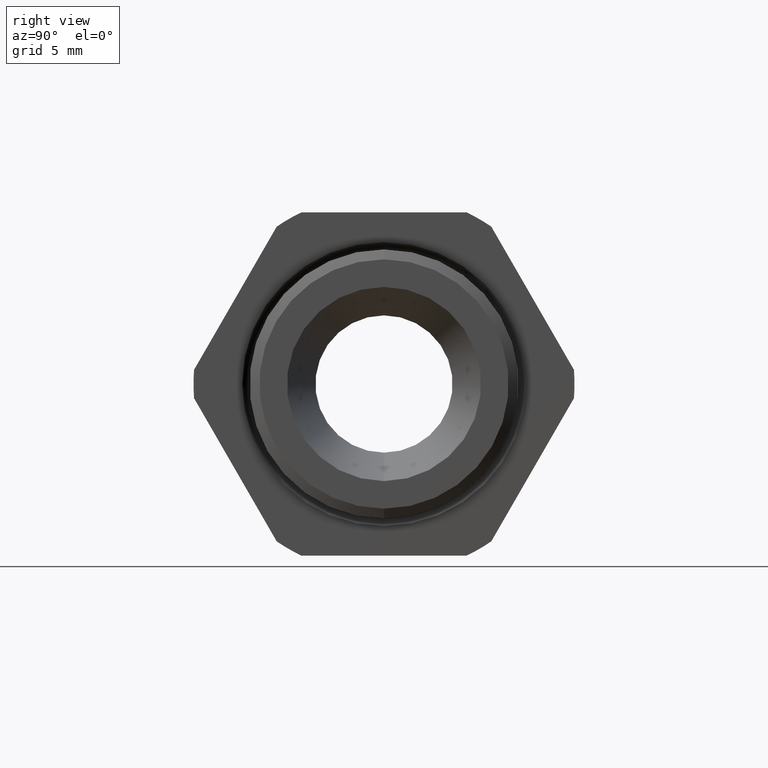
[diagram: clean part render]
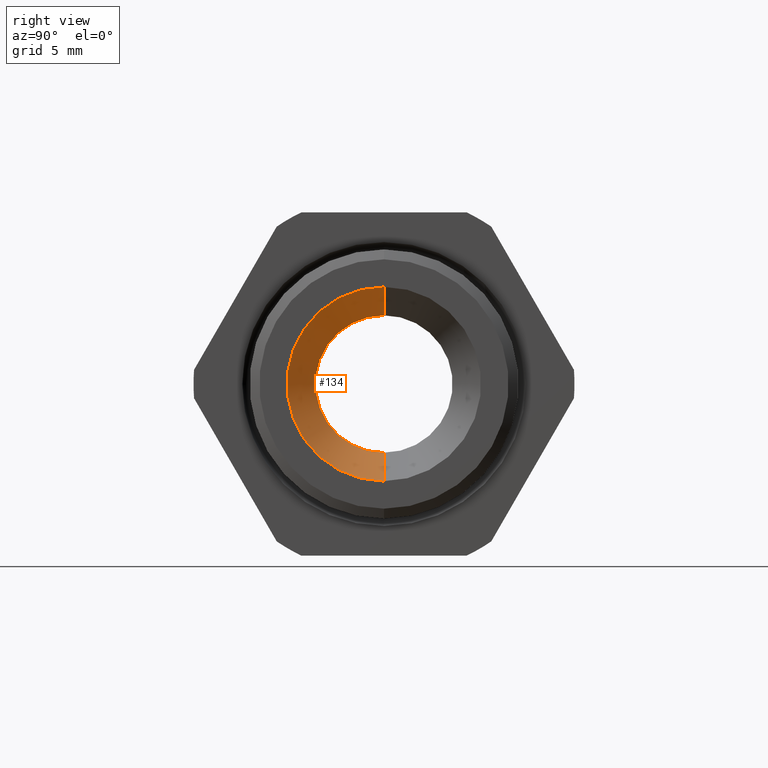
[diagram: same view with one face highlighted and labeled with its STEP entity id]
A machine part, right view. The second image highlights one B-rep face of the part: STEP entity #134.
In plain terms, the highlighted conical surface has half-angle 7 deg.
Its self-contained STEP definition (entity closure, byte-faithful):
#120 = EDGE_CURVE ( 'NONE', #128, #126, #1380, .T. ) ;
#121 = EDGE_CURVE ( 'NONE', #129, #122, #1376, .T. ) ;
#122 = VERTEX_POINT ( 'NONE', #1372 ) ;
#123 = EDGE_CURVE ( 'NONE', #122, #126, #1371, .T. ) ;
#124 = ORIENTED_EDGE ( 'NONE', *, *, #120, .F. ) ;
#125 = ORIENTED_EDGE ( 'NONE', *, *, #123, .T. ) ;
#126 = VERTEX_POINT ( 'NONE', #1366 ) ;
#128 = VERTEX_POINT ( 'NONE', #1359 ) ;
#129 = VERTEX_POINT ( 'NONE', #1358 ) ;
#130 = ORIENTED_EDGE ( 'NONE', *, *, #121, .T. ) ;
#131 = EDGE_CURVE ( 'NONE', #129, #128, #1356, .T. ) ;
#132 = EDGE_LOOP ( 'NONE', ( #133, #130, #125, #124 ) ) ;
#133 = ORIENTED_EDGE ( 'NONE', *, *, #131, .F. ) ;
#134 = ADVANCED_FACE ( 'NONE', ( #1357 ), #1349, .F. ) ;
#1349 = CONICAL_SURFACE ( 'NONE', #1412, 0.1499999999999999900, 0.1221730476395964700 ) ;
#1351 = CARTESIAN_POINT ( 'NONE',  ( -0.5068503937007873300, 0.0000000000000000000, 0.0000000000000000000 ) ) ;
#1352 = DIRECTION ( 'NONE',  ( 0.0000000000000000000, 0.0000000000000000000, -1.000000000000000000 ) ) ;
#1353 = DIRECTION ( 'NONE',  ( 1.000000000000000000, 0.0000000000000000000, 0.0000000000000000000 ) ) ;
#1354 = CARTESIAN_POINT ( 'NONE',  ( -0.5068503937007873300, 0.0000000000000000000, 0.0000000000000000000 ) ) ;
#1355 = AXIS2_PLACEMENT_3D ( 'NONE', #1354, #1353, #1352 ) ;
#1356 = CIRCLE ( 'NONE', #1355, 0.1499999999999999900 ) ;
#1357 = FACE_OUTER_BOUND ( 'NONE', #132, .T. ) ;
#1358 = CARTESIAN_POINT ( 'NONE',  ( -0.5068503937007873300, 1.836970198721029400E-017, 0.1499999999999999900 ) ) ;
#1359 = CARTESIAN_POINT ( 'NONE',  ( -0.5068503937007873300, 0.0000000000000000000, -0.1499999999999999900 ) ) ;
#1366 = CARTESIAN_POINT ( 'NONE',  ( 0.0000000000000000000, 0.0000000000000000000, -0.2122334030340120900 ) ) ;
#1367 = DIRECTION ( 'NONE',  ( 0.0000000000000000000, 0.0000000000000000000, -1.000000000000000000 ) ) ;
#1368 = DIRECTION ( 'NONE',  ( 1.000000000000000000, 0.0000000000000000000, 0.0000000000000000000 ) ) ;
#1369 = CARTESIAN_POINT ( 'NONE',  ( 0.0000000000000000000, 0.0000000000000000000, 0.0000000000000000000 ) ) ;
#1370 = AXIS2_PLACEMENT_3D ( 'NONE', #1369, #1368, #1367 ) ;
#1371 = CIRCLE ( 'NONE', #1370, 0.2122334030340120900 ) ;
#1372 = CARTESIAN_POINT ( 'NONE',  ( 0.0000000000000000000, 2.599109576977530700E-017, 0.2122334030340120900 ) ) ;
#1373 = DIRECTION ( 'NONE',  ( 0.9925461516413227600, 1.492469013152954000E-017, 0.1218693434051409100 ) ) ;
#1374 = VECTOR ( 'NONE', #1373, 39.37007874015748900 ) ;
#1375 = CARTESIAN_POINT ( 'NONE',  ( -0.5068503937007873300, 1.836970198721029400E-017, 0.1499999999999999900 ) ) ;
#1376 = LINE ( 'NONE', #1375, #1374 ) ;
#1377 = DIRECTION ( 'NONE',  ( 0.9925461516413227600, 0.0000000000000000000, -0.1218693434051409100 ) ) ;
#1378 = VECTOR ( 'NONE', #1377, 39.37007874015748900 ) ;
#1379 = CARTESIAN_POINT ( 'NONE',  ( -0.5068503937007873300, 0.0000000000000000000, -0.1499999999999999900 ) ) ;
#1380 = LINE ( 'NONE', #1379, #1378 ) ;
#1410 = DIRECTION ( 'NONE',  ( 0.0000000000000000000, 0.0000000000000000000, -1.000000000000000000 ) ) ;
#1411 = DIRECTION ( 'NONE',  ( 1.000000000000000000, 0.0000000000000000000, 0.0000000000000000000 ) ) ;
#1412 = AXIS2_PLACEMENT_3D ( 'NONE', #1351, #1411, #1410 ) ;